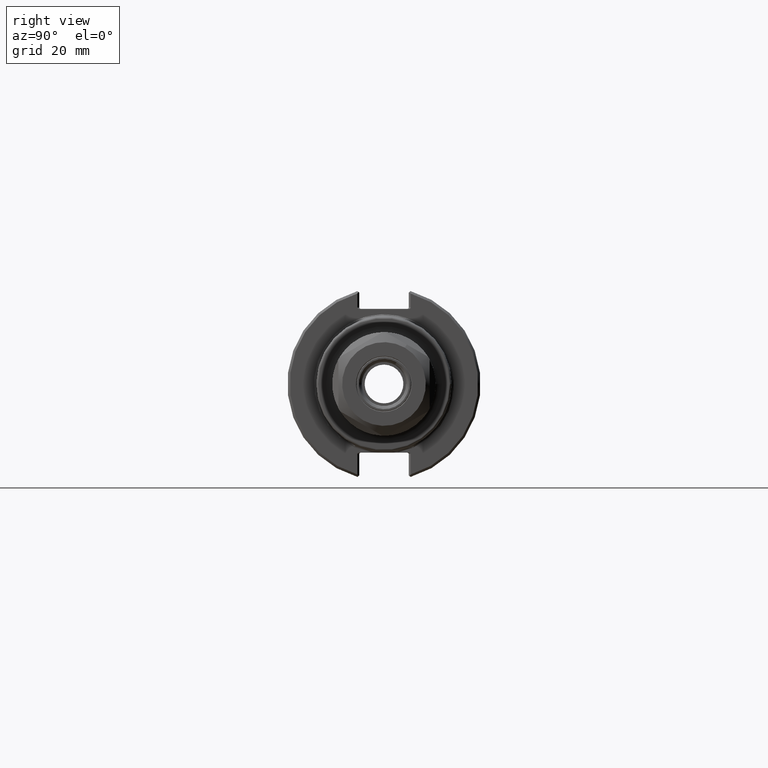
[diagram: clean part render]
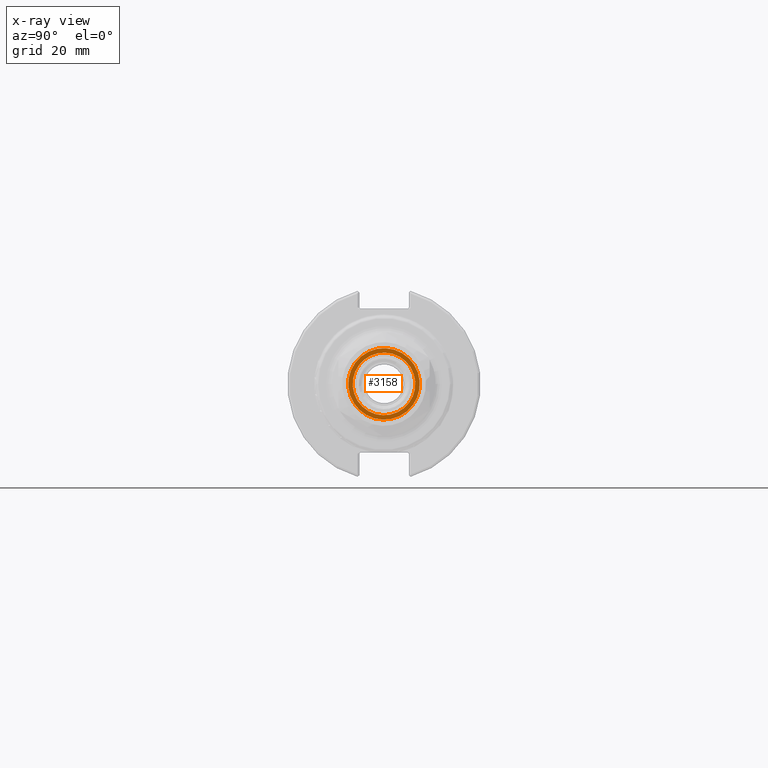
[diagram: x-ray — body ghosted, one internal face saturated and labeled with its STEP entity id]
A machine part, right view, then the same camera in x-ray: the body is ghosted and one INTERNAL B-rep face — a face not visible from any outside direction — is saturated and labeled: STEP entity #3158.
In plain terms, the highlighted planar face has unit normal (-1, -0, 0).
Its self-contained STEP definition (entity closure, byte-faithful):
#3127=CARTESIAN_POINT('',(0.36,0.4625,-1.132761E-016));
#3128=VERTEX_POINT('',#3127);
#3129=CARTESIAN_POINT('',(0.36,0.0,0.0));
#3130=DIRECTION('',(-1.0,0.0,0.0));
#3131=DIRECTION('',(0.0,-1.0,0.0));
#3132=AXIS2_PLACEMENT_3D('',#3129,#3130,#3131);
#3133=CIRCLE('',#3132,0.4625);
#3134=EDGE_CURVE('',#3128,#3128,#3133,.T.);
#3139=CARTESIAN_POINT('',(0.36,0.44875,0.0));
#3140=DIRECTION('',(1.0,0.0,0.0));
#3141=DIRECTION('',(0.0,0.0,-1.0));
#3142=AXIS2_PLACEMENT_3D('',#3139,#3140,#3141);
#3143=PLANE('',#3142);
#3144=ORIENTED_EDGE('',*,*,#3134,.F.);
#3145=EDGE_LOOP('',(#3144));
#3146=FACE_OUTER_BOUND('',#3145,.T.);
#3147=CARTESIAN_POINT('',(0.36,0.405,0.0));
#3148=VERTEX_POINT('',#3147);
#3149=CARTESIAN_POINT('',(0.36,0.0,0.0));
#3150=DIRECTION('',(1.0,0.0,0.0));
#3151=DIRECTION('',(0.0,-1.0,0.0));
#3152=AXIS2_PLACEMENT_3D('',#3149,#3150,#3151);
#3153=CIRCLE('',#3152,0.405);
#3154=EDGE_CURVE('',#3148,#3148,#3153,.T.);
#3155=ORIENTED_EDGE('',*,*,#3154,.F.);
#3156=EDGE_LOOP('',(#3155));
#3157=FACE_BOUND('',#3156,.T.);
#3158=ADVANCED_FACE('',(#3146,#3157),#3143,.T.);